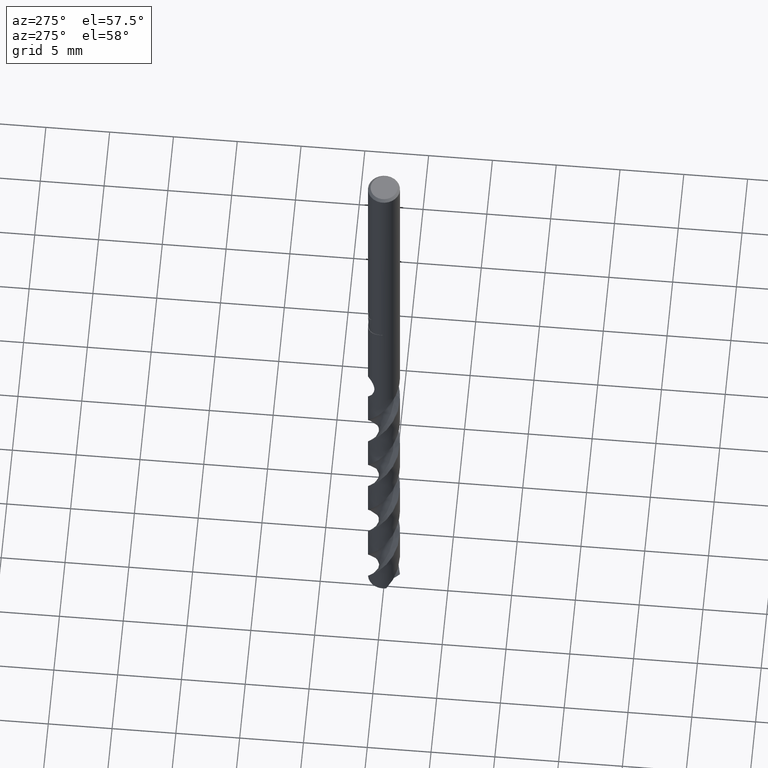
[diagram: clean part render]
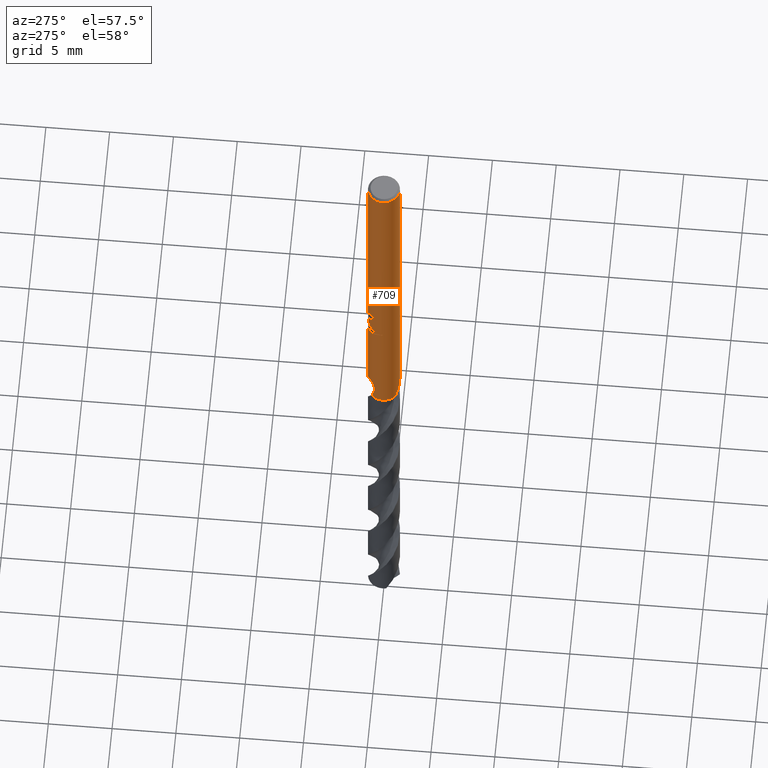
[diagram: same view with one face highlighted and labeled with its STEP entity id]
A machine part, auxiliary view. The second image highlights one B-rep face of the part: STEP entity #709.
In plain terms, the highlighted cylindrical surface (edge-blend (fillet) strip) has radius 1.25 mm, axis along (-0, -0, 1).
Its self-contained STEP definition (entity closure, byte-faithful):
#299=VERTEX_POINT('',#821);
#305=EDGE_CURVE('',#633,#723,#828,.T.);
#319=EDGE_CURVE('',#729,#633,#842,.T.);
#355=VERTEX_POINT('',#881);
#367=VERTEX_POINT('',#894);
#397=EDGE_CURVE('',#547,#503,#925,.T.);
#423=EDGE_CURVE('',#503,#615,#953,.T.);
#431=EDGE_CURVE('',#723,#569,#961,.T.);
#467=EDGE_CURVE('',#675,#559,#1000,.T.);
#481=VERTEX_POINT('',#1016);
#483=VERTEX_POINT('',#1018);
#501=EDGE_CURVE('',#665,#483,#1038,.T.);
#503=VERTEX_POINT('',#1040);
#531=EDGE_CURVE('',#559,#355,#1073,.T.);
#547=VERTEX_POINT('',#1091);
#555=EDGE_CURVE('',#299,#569,#1100,.T.);
#559=VERTEX_POINT('',#1104);
#569=VERTEX_POINT('',#1114);
#577=EDGE_CURVE('',#481,#367,#1122,.T.);
#601=EDGE_CURVE('',#355,#647,#1149,.T.);
#609=EDGE_CURVE('',#483,#729,#1158,.T.);
#615=VERTEX_POINT('',#1164);
#621=EDGE_CURVE('',#647,#481,#1171,.T.);
#633=VERTEX_POINT('',#1185);
#647=VERTEX_POINT('',#1199);
#659=EDGE_CURVE('',#615,#675,#1211,.T.);
#665=VERTEX_POINT('',#1218);
#675=VERTEX_POINT('',#1229);
#709=ADVANCED_FACE('',(#1265),#1266,.T.);
#723=VERTEX_POINT('',#1283);
#729=VERTEX_POINT('',#1289);
#753=EDGE_CURVE('',#299,#547,#1314,.T.);
#777=EDGE_CURVE('',#367,#665,#1341,.T.);
#821=CARTESIAN_POINT('',(-0.794146447505182,-0.965314156072985,-28.89));
#828=B_SPLINE_CURVE_WITH_KNOTS('',3,(#1568,#1569,#1570,#1571,#1572,#1573,#1574,#1575,#1576,#1577,#1578,#1579,#1580,#1581,#1582,#1583,#1584,#1585,#1586,#1587,#1588,#1589,#1590,#1591,#1592,#1593,#1594,#1595),.UNSPECIFIED.,.F.,.F.,(4,2,2,2,2,2,2,2,2,2,2,2,2,4),(0.0,0.608799022413517,0.942866571225053,1.2459937069226,1.59847525659938,2.02161159611357,2.38609438651865,2.55210933455431,2.67349173236552,2.78838499956849,2.93417900734568,3.1475198424407,3.45078185963691,3.79518990267167),.UNSPECIFIED.);
#842=LINE('',#1768,#1769);
#881=CARTESIAN_POINT('',(-0.562333990228013,1.11636933110608,-17.3171221986971));
#894=CARTESIAN_POINT('',(1.25597875210599E-015,1.25,-18.7128911336578));
#925=LINE('',#3322,#3323);
#953=CIRCLE('',#3360,1.25);
#961=B_SPLINE_CURVE_WITH_KNOTS('',3,(#3379,#3380,#3381,#3382),.UNSPECIFIED.,.F.,.F.,(4,4),(0.0,0.71313860616605),.UNSPECIFIED.);
#1000=B_SPLINE_CURVE_WITH_KNOTS('',3,(#3457,#3458,#3459,#3460,#3461,#3462,#3463,#3464,#3465,#3466,#3467,#3468,#3469,#3470,#3471,#3472,#3473,#3474,#3475,#3476,#3477,#3478,#3479,#3480,#3481,#3482,#3483),.UNSPECIFIED.,.F.,.F.,(4,2,3,2,2,2,2,2,2,2,2,2,4),(-0.56627153206517,-0.283135766032585,0.0,0.283135766032586,0.566271532065173,0.856284656936765,1.14629778180836,1.41813337464671,1.68996896748507,1.96700896815394,2.2440489688228,2.52108896949167,2.79812897016054),.UNSPECIFIED.);
#1016=CARTESIAN_POINT('',(2.35719168458961E-016,1.25,-18.5000801551881));
#1018=CARTESIAN_POINT('',(-1.25,0.0,-19.4797100050267));
#1038=LINE('',#5468,#5469);
#1040=CARTESIAN_POINT('',(1.53075794227797E-016,-1.25,-0.199999999999999));
#1073=B_SPLINE_CURVE_WITH_KNOTS('',3,(#5957,#5958,#5959,#5960,#5961,#5962,#5963,#5964,#5965,#5966,#5967,#5968,#5969,#5970,#5971,#5972,#5973,#5974,#5975,#5976,#5977,#5978,#5979,#5980,#5981,#5982,#5983),.UNSPECIFIED.,.F.,.F.,(4,2,3,2,2,2,2,2,2,2,2,2,4),(-0.56627153206517,-0.283135766032585,0.0,0.283135766032586,0.566271532065173,0.856284656936765,1.14629778180836,1.41813337464671,1.68996896748507,1.96700896815394,2.2440489688228,2.52108896949167,2.79812897016054),.UNSPECIFIED.);
#1091=CARTESIAN_POINT('',(4.39558322194982E-013,-1.25,-27.5662708733769));
#1100=CIRCLE('',#6045,1.25);
#1104=CARTESIAN_POINT('',(-0.486378944383045,1.15149273660794,-17.6432837483006));
#1114=CARTESIAN_POINT('',(-0.870165089293926,0.897392175904211,-28.89));
#1122=LINE('',#6276,#6277);
#1149=CIRCLE('',#6318,1.25);
#1158=B_SPLINE_CURVE_WITH_KNOTS('',3,(#6356,#6357,#6358,#6359,#6360,#6361,#6362,#6363,#6364,#6365,#6366,#6367,#6368,#6369,#6370,#6371,#6372,#6373,#6374,#6375,#6376),.UNSPECIFIED.,.F.,.F.,(4,3,2,2,2,2,2,2,2,4),(-0.252148323623309,0.0,0.252148323623308,0.504296647246617,1.00859329449323,1.49974484974529,1.74532062737131,1.99089640499734,2.23973712446459,2.48857784393184),.UNSPECIFIED.);
#1164=CARTESIAN_POINT('',(0.0,1.25,-0.199999999999999));
#1171=B_SPLINE_CURVE_WITH_KNOTS('',3,(#6492,#6493,#6494,#6495,#6496,#6497,#6498,#6499,#6500,#6501,#6502,#6503,#6504,#6505,#6506,#6507,#6508,#6509,#6510,#6511),.UNSPECIFIED.,.F.,.F.,(4,2,2,2,2,2,2,2,2,4),(4.05660520263103,4.26710213070743,4.47759905878383,4.68809598686023,5.10908984301303,5.52792614152867,5.94676244004431,6.14902658641285,6.3512907327814,6.75581902551849),.UNSPECIFIED.);
#1185=CARTESIAN_POINT('',(-4.33785162466931E-013,1.25,-27.566270873377));
#1199=CARTESIAN_POINT('',(-1.0350734039088,0.700801718405898,-17.3171221986971));
#1211=LINE('',#6920,#6921);
#1218=CARTESIAN_POINT('',(-1.25,0.0,-19.329161935256));
#1229=CARTESIAN_POINT('',(4.4836124040209E-016,1.25,-18.0232688117743));
#1265=FACE_OUTER_BOUND('',#7363,.T.);
#1266=CYLINDRICAL_SURFACE('',#7364,1.25);
#1283=CARTESIAN_POINT('',(-1.01705270404274,0.726707504570679,-28.2105247112293));
#1289=CARTESIAN_POINT('',(-2.17418747032393E-016,1.25,-20.0310253601033));
#1314=B_SPLINE_CURVE_WITH_KNOTS('',3,(#8368,#8369,#8370,#8371,#8372,#8373,#8374,#8375,#8376,#8377,#8378,#8379,#8380,#8381,#8382,#8383,#8384,#8385,#8386,#8387,#8388,#8389,#8390,#8391,#8392,#8393,#8394,#8395),.UNSPECIFIED.,.F.,.F.,(4,2,2,2,2,2,2,2,2,2,2,2,2,4),(0.0,0.608799022413522,0.942866571225054,1.24599370692264,1.59847525659942,2.02161159611364,2.38609438651876,2.55210933455441,2.67349173236561,2.78838499956857,2.93417900734575,3.14751984244057,3.45078185963635,3.79518990267085),.UNSPECIFIED.);
#1341=ELLIPSE('',#8649,1.39366054005358,1.25);
#1568=CARTESIAN_POINT('',(0.794146447505181,0.965314156072986,-28.89));
#1569=CARTESIAN_POINT('',(0.711876728132428,1.03299596200745,-28.7172786291709));
#1570=CARTESIAN_POINT('',(0.617481146059564,1.09306024336693,-28.5560654430814));
#1571=CARTESIAN_POINT('',(0.452884078105355,1.16682480417789,-28.2865294004521));
#1572=CARTESIAN_POINT('',(0.393474394409545,1.18810651853339,-28.191384189921));
#1573=CARTESIAN_POINT('',(0.27838425117616,1.21992993863449,-28.0070723740685));
#1574=CARTESIAN_POINT('',(0.223206420167219,1.23117315827679,-27.918747083039));
#1575=CARTESIAN_POINT('',(0.103715296003179,1.24737573072122,-27.7283112664232));
#1576=CARTESIAN_POINT('',(0.0383907539272846,1.25114837043852,-27.6246920369229));
#1577=CARTESIAN_POINT('',(-0.106638549908706,1.24795484166696,-27.4031513511802));
#1578=CARTESIAN_POINT('',(-0.192653687646439,1.23842813964484,-27.277093815638));
#1579=CARTESIAN_POINT('',(-0.3580729979803,1.20019031681798,-27.0700331647351));
#1580=CARTESIAN_POINT('',(-0.449201544450309,1.17125307374376,-26.9694664468972));
#1581=CARTESIAN_POINT('',(-0.587353750622338,1.10445537941938,-26.8749895563776));
#1582=CARTESIAN_POINT('',(-0.633238928916582,1.07915319943912,-26.8515683191707));
#1583=CARTESIAN_POINT('',(-0.713649079305822,1.02705526472247,-26.8335953019397));
#1584=CARTESIAN_POINT('',(-0.746633845729707,1.00332677872142,-26.8332777355938));
#1585=CARTESIAN_POINT('',(-0.808073058237144,0.954450300480376,-26.8490817843072));
#1586=CARTESIAN_POINT('',(-0.834944836686369,0.930842656376983,-26.8638859393282));
#1587=CARTESIAN_POINT('',(-0.889633872256758,0.879104280012401,-26.9101942158589));
#1588=CARTESIAN_POINT('',(-0.914936015037014,0.852290852648587,-26.9443830338076));
#1589=CARTESIAN_POINT('',(-0.966763264612508,0.793741985449967,-27.0379992361418));
#1590=CARTESIAN_POINT('',(-0.991533120331538,0.76185978771309,-27.1074361177887));
#1591=CARTESIAN_POINT('',(-1.03809753469729,0.697862509899188,-27.3016905556733));
#1592=CARTESIAN_POINT('',(-1.05492182076192,0.670618554151901,-27.4400292777076));
#1593=CARTESIAN_POINT('',(-1.06561951101393,0.653506101606485,-27.7705395098121));
#1594=CARTESIAN_POINT('',(-1.05796123514083,0.669454576934679,-27.9778505655066));
#1595=CARTESIAN_POINT('',(-1.01705270404275,0.72670750457068,-28.2105247112293));
#1768=CARTESIAN_POINT('',(-1.53075794227797E-016,1.25,-27.945));
#1769=VECTOR('',#8698,1.0);
#3322=CARTESIAN_POINT('',(1.53075794227797E-016,-1.25,-27.945));
#3323=VECTOR('',#8767,1.0);
#3360=AXIS2_PLACEMENT_3D('',#8823,#8824,#8825);
#3379=CARTESIAN_POINT('',(-1.01705270409536,0.726707504497038,-28.2105247112583));
#3380=CARTESIAN_POINT('',(-0.977048867794111,0.782694279963921,-28.4380606029546));
#3381=CARTESIAN_POINT('',(-0.928897644153498,0.840441580371835,-28.6669167618133));
#3382=CARTESIAN_POINT('',(-0.870165089293926,0.897392175904211,-28.89));
#3457=CARTESIAN_POINT('',(0.669801423276727,1.05539852822357,-16.8183236067443));
#3458=CARTESIAN_POINT('',(0.730187386566538,1.01707499159184,-16.8799041229678));
#3459=CARTESIAN_POINT('',(0.783389201088,0.975249669860154,-16.9574132108021));
#3460=CARTESIAN_POINT('',(0.855972484427494,0.912207154565089,-17.1308686538957));
#3461=CARTESIAN_POINT('',(0.875400981188567,0.892285336724803,-17.2272634239093));
#3462=CARTESIAN_POINT('',(0.875400981188567,0.892285336724803,-17.3216420125868));
#3463=CARTESIAN_POINT('',(0.875400981188567,0.892285336724803,-17.4160206012643));
#3464=CARTESIAN_POINT('',(0.855972484427494,0.912207154565089,-17.5124153712779));
#3465=CARTESIAN_POINT('',(0.783389201088001,0.975249669860154,-17.6858708143714));
#3466=CARTESIAN_POINT('',(0.730187386566539,1.01707499159183,-17.7633799022057));
#3467=CARTESIAN_POINT('',(0.607948686840582,1.09465294235301,-17.8880367234523));
#3468=CARTESIAN_POINT('',(0.529099811785179,1.13646904040623,-17.9439898742992));
#3469=CARTESIAN_POINT('',(0.351437754351389,1.20332872748362,-18.0203103224054));
#3470=CARTESIAN_POINT('',(0.252436521227642,1.22805581837274,-18.0405166027747));
#3471=CARTESIAN_POINT('',(0.066627745479017,1.25150759225847,-18.0405166027747));
#3472=CARTESIAN_POINT('',(-0.0294916209803419,1.25278007997067,-18.0225387482582));
#3473=CARTESIAN_POINT('',(-0.205655547848767,1.23613651344737,-17.9498801532845));
#3474=CARTESIAN_POINT('',(-0.285765504796268,1.21867005341297,-17.8952557042421));
#3475=CARTESIAN_POINT('',(-0.413183417128621,1.18163659106383,-17.7692913346337));
#3476=CARTESIAN_POINT('',(-0.468926848017849,1.15942741769996,-17.6888789599308));
#3477=CARTESIAN_POINT('',(-0.54353064493245,1.12638312234341,-17.5113118946768));
#3478=CARTESIAN_POINT('',(-0.562348199187247,1.1163621737012,-17.4139886794764));
#3479=CARTESIAN_POINT('',(-0.562348199187247,1.1163621737012,-17.2292953456972));
#3480=CARTESIAN_POINT('',(-0.543530644932451,1.12638312234341,-17.1319721304968));
#3481=CARTESIAN_POINT('',(-0.468926848017852,1.15942741769996,-16.9544050652428));
#3482=CARTESIAN_POINT('',(-0.413183417128621,1.18163659106383,-16.8739926905399));
#3483=CARTESIAN_POINT('',(-0.348870376185736,1.20032889685287,-16.8104133121646));
#5468=CARTESIAN_POINT('',(-1.25,0.0,-19.4139523353034));
#5469=VECTOR('',#8918,1.0);
#5957=CARTESIAN_POINT('',(0.669801423276727,1.05539852822357,-16.8183236067443));
#5958=CARTESIAN_POINT('',(0.730187386566538,1.01707499159184,-16.8799041229678));
#5959=CARTESIAN_POINT('',(0.783389201088,0.975249669860154,-16.9574132108021));
#5960=CARTESIAN_POINT('',(0.855972484427494,0.912207154565089,-17.1308686538957));
#5961=CARTESIAN_POINT('',(0.875400981188567,0.892285336724803,-17.2272634239093));
#5962=CARTESIAN_POINT('',(0.875400981188567,0.892285336724803,-17.3216420125868));
#5963=CARTESIAN_POINT('',(0.875400981188567,0.892285336724803,-17.4160206012643));
#5964=CARTESIAN_POINT('',(0.855972484427494,0.912207154565089,-17.5124153712779));
#5965=CARTESIAN_POINT('',(0.783389201088001,0.975249669860154,-17.6858708143714));
#5966=CARTESIAN_POINT('',(0.730187386566539,1.01707499159183,-17.7633799022057));
#5967=CARTESIAN_POINT('',(0.607948686840582,1.09465294235301,-17.8880367234523));
#5968=CARTESIAN_POINT('',(0.529099811785179,1.13646904040623,-17.9439898742992));
#5969=CARTESIAN_POINT('',(0.351437754351389,1.20332872748362,-18.0203103224054));
#5970=CARTESIAN_POINT('',(0.252436521227642,1.22805581837274,-18.0405166027747));
#5971=CARTESIAN_POINT('',(0.066627745479017,1.25150759225847,-18.0405166027747));
#5972=CARTESIAN_POINT('',(-0.0294916209803419,1.25278007997067,-18.0225387482582));
#5973=CARTESIAN_POINT('',(-0.205655547848767,1.23613651344737,-17.9498801532845));
#5974=CARTESIAN_POINT('',(-0.285765504796268,1.21867005341297,-17.8952557042421));
#5975=CARTESIAN_POINT('',(-0.413183417128621,1.18163659106383,-17.7692913346337));
#5976=CARTESIAN_POINT('',(-0.468926848017849,1.15942741769996,-17.6888789599308));
#5977=CARTESIAN_POINT('',(-0.54353064493245,1.12638312234341,-17.5113118946768));
#5978=CARTESIAN_POINT('',(-0.562348199187247,1.1163621737012,-17.4139886794764));
#5979=CARTESIAN_POINT('',(-0.562348199187247,1.1163621737012,-17.2292953456972));
#5980=CARTESIAN_POINT('',(-0.543530644932451,1.12638312234341,-17.1319721304968));
#5981=CARTESIAN_POINT('',(-0.468926848017852,1.15942741769996,-16.9544050652428));
#5982=CARTESIAN_POINT('',(-0.413183417128621,1.18163659106383,-16.8739926905399));
#5983=CARTESIAN_POINT('',(-0.348870376185736,1.20032889685287,-16.8104133121646));
#6045=AXIS2_PLACEMENT_3D('',#9003,#9004,#9005);
#6276=CARTESIAN_POINT('',(-1.53075794227797E-016,1.25,-27.945));
#6277=VECTOR('',#9010,1.0);
#6318=AXIS2_PLACEMENT_3D('',#9041,#9042,#9043);
#6356=CARTESIAN_POINT('',(-1.22463553924459,-0.250535019546371,-19.5078128373167));
#6357=CARTESIAN_POINT('',(-1.24143958382734,-0.168395476077887,-19.4896241494105));
#6358=CARTESIAN_POINT('',(-1.25,-0.0840494412077695,-19.4797100050267));
#6359=CARTESIAN_POINT('',(-1.25,0.0,-19.4797100050267));
#6360=CARTESIAN_POINT('',(-1.25,0.0840494412077695,-19.4797100050267));
#6361=CARTESIAN_POINT('',(-1.24143958382734,0.168395476077887,-19.4896241494105));
#6362=CARTESIAN_POINT('',(-1.20783149466185,0.332674563014854,-19.5260015252229));
#6363=CARTESIAN_POINT('',(-1.18280340570935,0.412648055826509,-19.5523000203123));
#6364=CARTESIAN_POINT('',(-1.08609475985221,0.640396988178231,-19.644245299825));
#6365=CARTESIAN_POINT('',(-0.991694695977028,0.776389854162967,-19.7220625561564));
#6366=CARTESIAN_POINT('',(-0.77632235556571,0.991131527665127,-19.8547376152222));
#6367=CARTESIAN_POINT('',(-0.640307760393833,1.0863409288748,-19.9203442462299));
#6368=CARTESIAN_POINT('',(-0.410691485439252,1.18352871362699,-19.987768920909));
#6369=CARTESIAN_POINT('',(-0.329923164951538,1.20858821822764,-20.0052595075535));
#6370=CARTESIAN_POINT('',(-0.165502852792551,1.2418307379801,-20.0276074810255));
#6371=CARTESIAN_POINT('',(-0.0818461793684626,1.25,-20.0324508760605));
#6372=CARTESIAN_POINT('',(0.0829343282817952,1.25,-20.0295808918426));
#6373=CARTESIAN_POINT('',(0.167413257690449,1.24161662486302,-20.0216444545353));
#6374=CARTESIAN_POINT('',(0.332979336986514,1.20779294709355,-19.9929033767966));
#6375=CARTESIAN_POINT('',(0.414072030884795,1.18236832315246,-19.9721122259002));
#6376=CARTESIAN_POINT('',(0.490747743852374,1.14963761764471,-19.9463283247946));
#6492=CARTESIAN_POINT('',(-1.01655614086558,0.727401960726306,-17.1176050103762));
#6493=CARTESIAN_POINT('',(-1.02881598203021,0.710268634341705,-17.1860140786361));
#6494=CARTESIAN_POINT('',(-1.03510901790186,0.700749114204391,-17.2561362180407));
#6495=CARTESIAN_POINT('',(-1.03510901790186,0.700749114204391,-17.3964675034249));
#6496=CARTESIAN_POINT('',(-1.02881598203021,0.710268634341706,-17.4665896428295));
#6497=CARTESIAN_POINT('',(-1.00429629970095,0.744535287110918,-17.6034077793492));
#6498=CARTESIAN_POINT('',(-0.986082792210444,0.76908653811494,-17.6701551152466));
#6499=CARTESIAN_POINT('',(-0.915678118186861,0.854076649302561,-17.8619043663965));
#6500=CARTESIAN_POINT('',(-0.846863267050195,0.924951807236315,-17.9788545179334));
#6501=CARTESIAN_POINT('',(-0.687682514249901,1.04866657364238,-18.173082330706));
#6502=CARTESIAN_POINT('',(-0.584576608639365,1.11240283956934,-18.2658075433963));
#6503=CARTESIAN_POINT('',(-0.344861386268878,1.20840413508861,-18.4109248124196));
#6504=CARTESIAN_POINT('',(-0.207955648493353,1.24019377822317,-18.4631411136483));
#6505=CARTESIAN_POINT('',(-0.00481477596118117,1.25174569579131,-18.5013929321986));
#6506=CARTESIAN_POINT('',(0.0643727647640643,1.25029530677662,-18.5084555943321));
#6507=CARTESIAN_POINT('',(0.203314941669036,1.23533203693857,-18.5101132820974));
#6508=CARTESIAN_POINT('',(0.273069443219569,1.22181884485991,-18.5047167715297));
#6509=CARTESIAN_POINT('',(0.475298056424205,1.16457053206479,-18.4713633870337));
#6510=CARTESIAN_POINT('',(0.600764589468868,1.10309773139669,-18.425381598966));
#6511=CARTESIAN_POINT('',(0.702859881736882,1.03367692566141,-18.3711609931303));
#6920=CARTESIAN_POINT('',(-1.53075794227797E-016,1.25,-27.945));
#6921=VECTOR('',#9103,1.0);
#7363=EDGE_LOOP('',(#9147,#9148,#9149,#9150,#9151,#9152,#9153,#9154,#9155,#9156,#9157,#9158,#9159,#9160,#9161,#9162));
#7364=AXIS2_PLACEMENT_3D('',#9163,#9164,#9165);
#8368=CARTESIAN_POINT('',(-0.794146447505182,-0.965314156072985,-28.89));
#8369=CARTESIAN_POINT('',(-0.711876728132429,-1.03299596200745,-28.7172786291709));
#8370=CARTESIAN_POINT('',(-0.617481146059567,-1.09306024336693,-28.5560654430814));
#8371=CARTESIAN_POINT('',(-0.452884078105355,-1.16682480417789,-28.2865294004521));
#8372=CARTESIAN_POINT('',(-0.393474394409544,-1.18810651853339,-28.191384189921));
#8373=CARTESIAN_POINT('',(-0.278384251176154,-1.21992993863449,-28.0070723740685));
#8374=CARTESIAN_POINT('',(-0.223206420167206,-1.23117315827679,-27.9187470830389));
#8375=CARTESIAN_POINT('',(-0.103715296003204,-1.24737573072122,-27.7283112664232));
#8376=CARTESIAN_POINT('',(-0.0383907539272968,-1.25114837043852,-27.6246920369229));
#8377=CARTESIAN_POINT('',(0.106638549908726,-1.24795484166696,-27.4031513511802));
#8378=CARTESIAN_POINT('',(0.192653687646446,-1.23842813964484,-27.277093815638));
#8379=CARTESIAN_POINT('',(0.358072997980294,-1.20019031681798,-27.0700331647351));
#8380=CARTESIAN_POINT('',(0.449201544450306,-1.17125307374376,-26.9694664468972));
#8381=CARTESIAN_POINT('',(0.587353750622332,-1.10445537941938,-26.8749895563776));
#8382=CARTESIAN_POINT('',(0.633238928916581,-1.07915319943912,-26.8515683191707));
#8383=CARTESIAN_POINT('',(0.713649079305823,-1.02705526472247,-26.8335953019397));
#8384=CARTESIAN_POINT('',(0.746633845729707,-1.00332677872142,-26.8332777355938));
#8385=CARTESIAN_POINT('',(0.808073058237144,-0.954450300480376,-26.8490817843072));
#8386=CARTESIAN_POINT('',(0.83494483668637,-0.930842656376983,-26.8638859393282));
#8387=CARTESIAN_POINT('',(0.889633872256757,-0.879104280012402,-26.9101942158589));
#8388=CARTESIAN_POINT('',(0.914936015037013,-0.852290852648589,-26.9443830338076));
#8389=CARTESIAN_POINT('',(0.966763264612484,-0.793741985449995,-27.0379992361417));
#8390=CARTESIAN_POINT('',(0.991533120331523,-0.761859787713113,-27.1074361177886));
#8391=CARTESIAN_POINT('',(1.03809753469731,-0.697862509899174,-27.3016905556733));
#8392=CARTESIAN_POINT('',(1.05492182076193,-0.670618554151899,-27.4400292777076));
#8393=CARTESIAN_POINT('',(1.06561951101394,-0.653506101606483,-27.7705395098122));
#8394=CARTESIAN_POINT('',(1.05796123514082,-0.669454576934692,-27.9778505655067));
#8395=CARTESIAN_POINT('',(1.01705270404275,-0.72670750457068,-28.2105247112293));
#8649=AXIS2_PLACEMENT_3D('',#9247,#9248,#9249);
#8698=DIRECTION('',(0.0,0.0,-1.0));
#8767=DIRECTION('',(-0.0,-0.0,1.0));
#8823=CARTESIAN_POINT('',(0.0,0.0,-0.199999999999999));
#8824=DIRECTION('',(0.0,0.0,-1.0));
#8825=DIRECTION('',(0.0,1.0,0.0));
#8918=DIRECTION('',(0.0,0.0,-1.0));
#9003=CARTESIAN_POINT('',(0.0,0.0,-28.89));
#9004=DIRECTION('',(0.0,0.0,-1.0));
#9005=DIRECTION('',(0.0,1.0,0.0));
#9010=DIRECTION('',(0.0,0.0,-1.0));
#9041=CARTESIAN_POINT('',(0.0,0.0,-17.3171221986971));
#9042=DIRECTION('',(0.0,-0.0,1.0));
#9043=DIRECTION('',(0.0,1.0,0.0));
#9103=DIRECTION('',(0.0,0.0,-1.0));
#9147=ORIENTED_EDGE('',*,*,#659,.T.);
#9148=ORIENTED_EDGE('',*,*,#467,.T.);
#9149=ORIENTED_EDGE('',*,*,#531,.T.);
#9150=ORIENTED_EDGE('',*,*,#601,.T.);
#9151=ORIENTED_EDGE('',*,*,#621,.T.);
#9152=ORIENTED_EDGE('',*,*,#577,.T.);
#9153=ORIENTED_EDGE('',*,*,#777,.T.);
#9154=ORIENTED_EDGE('',*,*,#501,.T.);
#9155=ORIENTED_EDGE('',*,*,#609,.T.);
#9156=ORIENTED_EDGE('',*,*,#319,.T.);
#9157=ORIENTED_EDGE('',*,*,#305,.T.);
#9158=ORIENTED_EDGE('',*,*,#431,.T.);
#9159=ORIENTED_EDGE('',*,*,#555,.F.);
#9160=ORIENTED_EDGE('',*,*,#753,.T.);
#9161=ORIENTED_EDGE('',*,*,#397,.T.);
#9162=ORIENTED_EDGE('',*,*,#423,.T.);
#9163=CARTESIAN_POINT('',(0.0,0.0,-27.945));
#9164=DIRECTION('',(-0.0,-0.0,1.0));
#9165=DIRECTION('',(0.0,1.0,0.0));
#9247=CARTESIAN_POINT('',(0.0,0.0,-18.7128911336578));
#9248=DIRECTION('',(-0.442195774284071,0.0,0.896918556617774));
#9249=DIRECTION('',(0.896918556617774,-0.0,0.442195774284071));